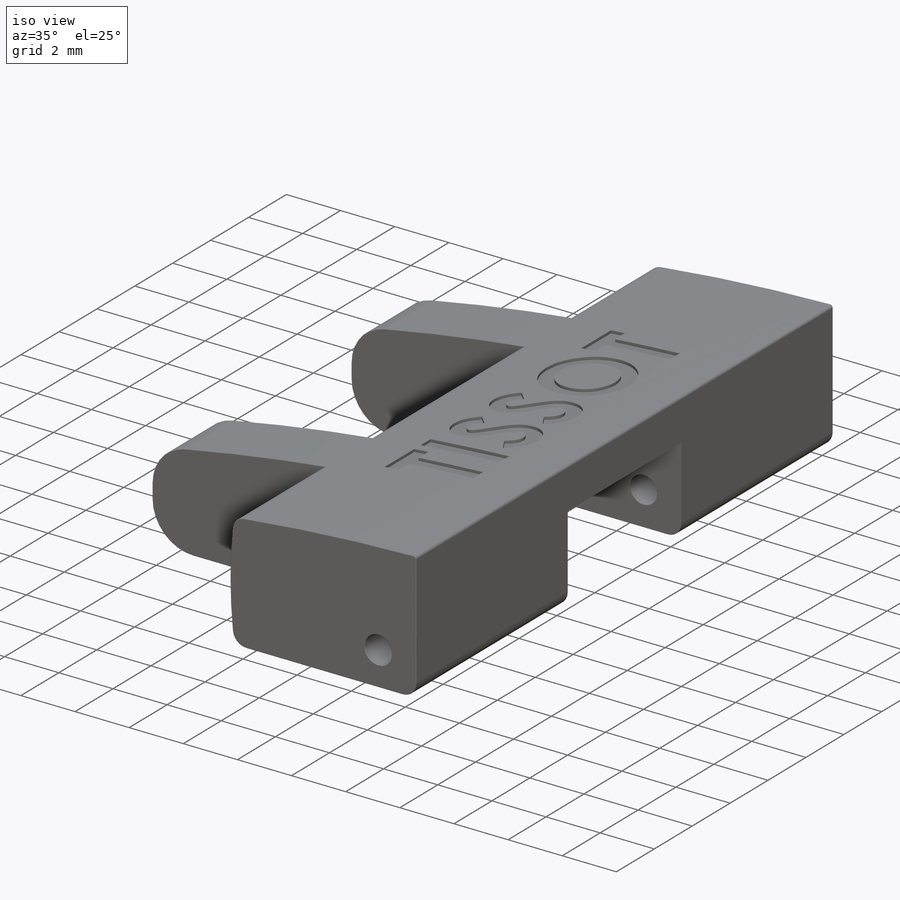
[diagram: iso view]
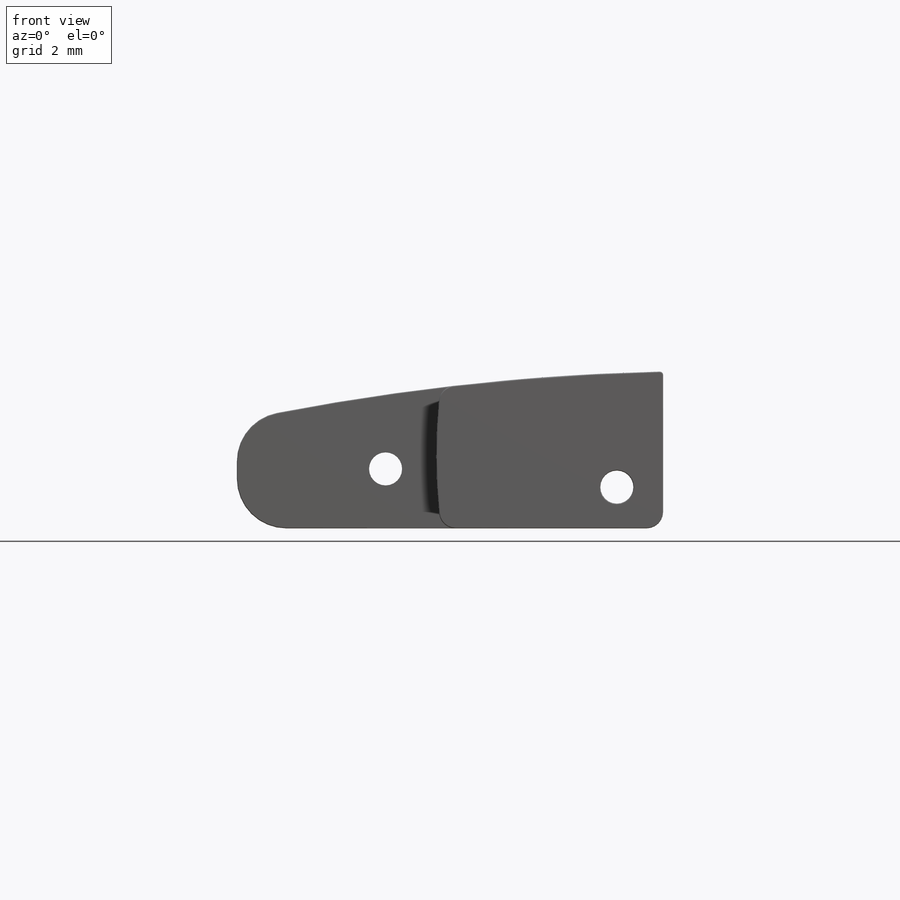
[diagram: front view]
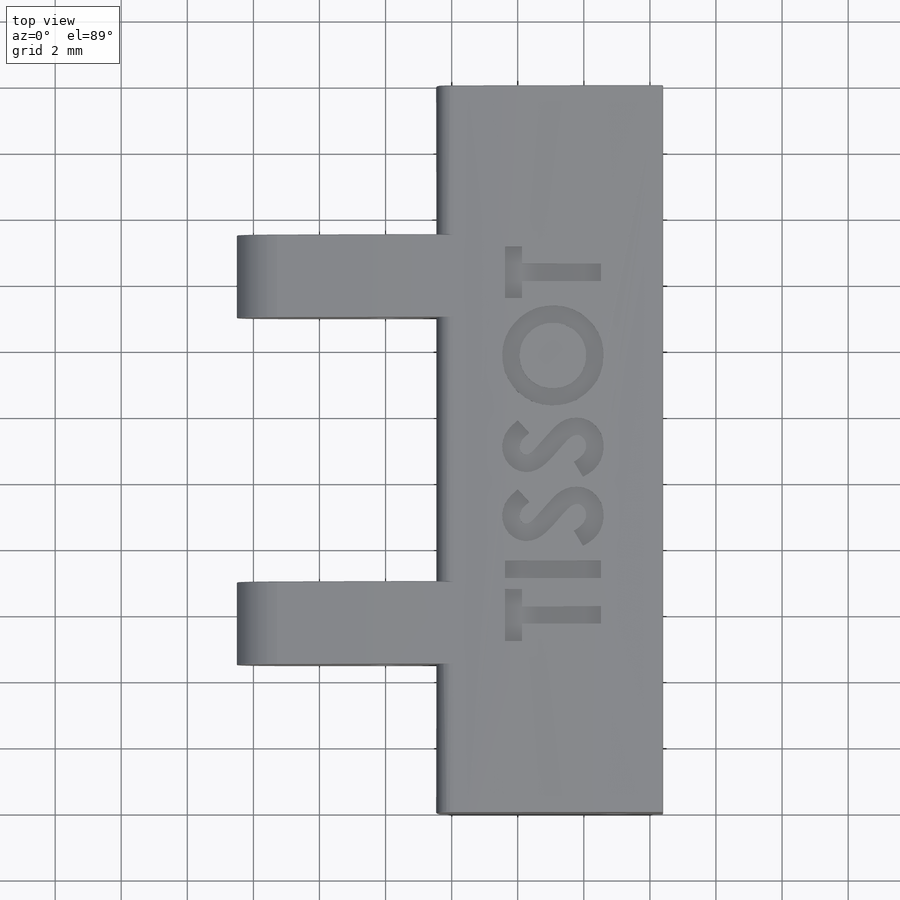
[diagram: top view]
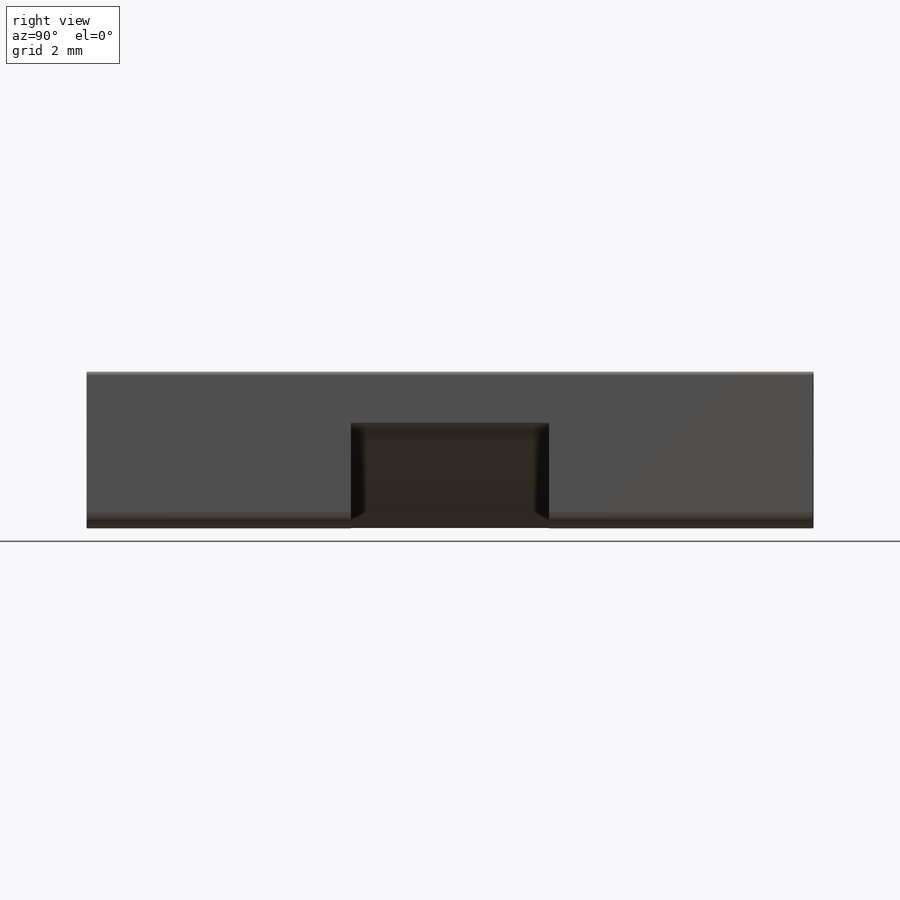
[diagram: right view]
SOLIDWORKS PART (.sldprt)
format: sldprt  version: not decoded by parser v0  size: 584,704 bytes
history: native  units: mm
features: sketch x12, cut_extrude x8, fillet x7, material x1, extrude x1 (+11 scaffold rows collapsed)
feature tree (40):
  scaffold x11  (default folders/planes/origin — collapsed)
  material  "Material <not specified>"
  sketch  "Sketch1"  dims[D1=4.75mm D2=2.0mm D3=13.0mm D4=6.5mm D5=0.1mm]
  extrude  "Boss-Extrude1"  Depth=22mm
  sketch  "Sketch2"  dims[D2=70.0mm D1=1.5mm]
  cut_extrude  "Cut-Extrude1"  Depth=22mm
  sketch  "Sketch3"  dims[D1=7.0mm]
  cut_extrude  "Cut-Extrude2"  Depth=4.5mm
  cut_extrude  "Cut-Extrude3"  [1 undecoded]
  sketch  "Sketch3<2>"  dims[D1=4.5mm D19=22.0mm]
  fillet  "Fillet1"  Radius=0.5mm
  fillet  "Fillet2"  Radius=0.5mm
  fillet  "Fillet3"  Radius=0.1mm
  sketch  "Sketch4"  dims[D3=1.0mm D1=1.25mm D2=1.5mm]
  cut_extrude  "Cut-Extrude4"  Depth=24.5mm
  fillet  "Fillet4"  Radius=1.5mm
  sketch  "Sketch5"  dims[D1=1.0mm D2=0.2mm D3=2.0mm]
  cut_extrude  "Cut-Extrude5"  Depth=24.5mm
  sketch  "Sketch6"  dims[D1=0.0mm]
  cut_extrude  "Cut-Extrude6"  Depth=2.5mm
  sketch  "Sketch7"
  cut_extrude  "Cut-Extrude7"  Depth=6mm
  sketch  "Sketch9"
  sketch  "Sketch10"
  fillet  "Fillet5"  Radius=0.5mm
  fillet  "Fillet6"  Radius=0.1mm
  fillet  "Fillet7"  Radius=0.03mm
  sketch  "Sketch11"
  sketch  "Sketch12"
  cut_extrude  "Cut-Extrude9"  Depth=0.1mm
decode coverage: 22 of 28 modeling features carry decoded parameters
note: 1 parameter value undecoded
note: suppression state not decoded; provenance and decode notes live in map.json
